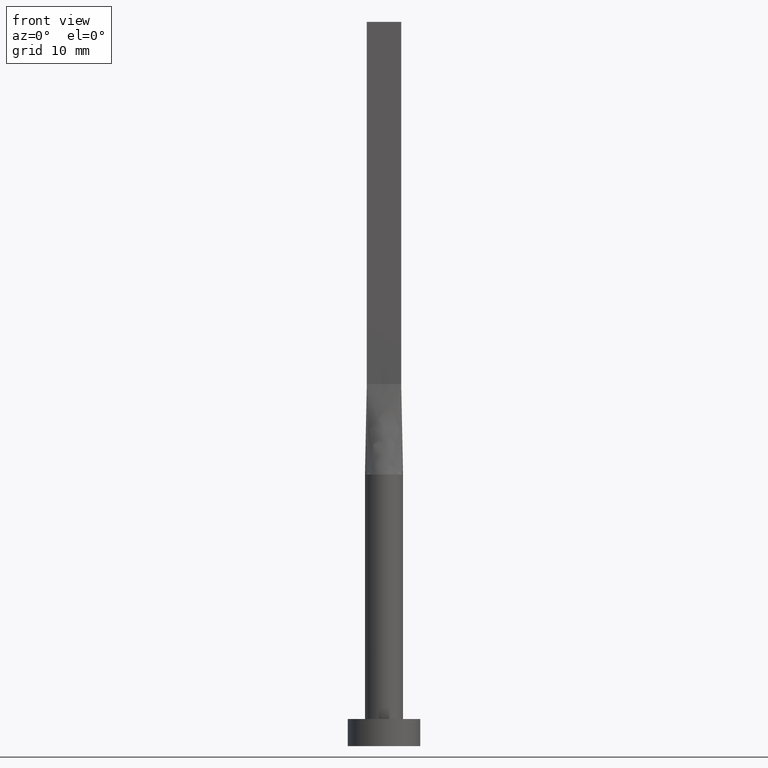
[diagram: clean part render]
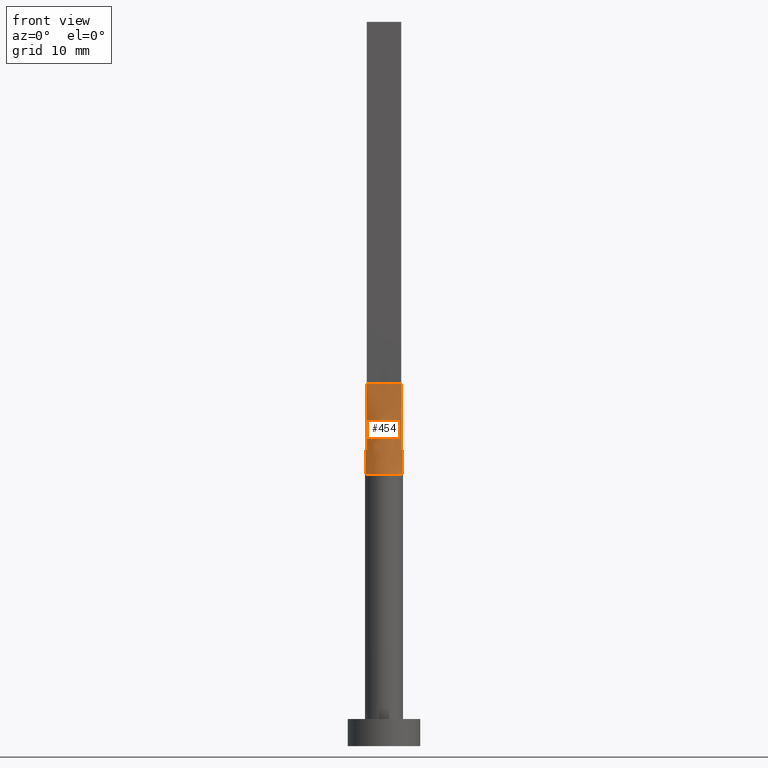
[diagram: same view with one face highlighted and labeled with its STEP entity id]
A machine part, front view. The second image highlights one B-rep face of the part: STEP entity #454.
In plain terms, the highlighted face is a freeform B-spline surface patch.
Its self-contained STEP definition (entity closure, byte-faithful):
#3 = CARTESIAN_POINT ( 'NONE',  ( 0.000000000000000000, 0.000000000000000000, 30.00000000000000000 ) ) ;
#7 = CARTESIAN_POINT ( 'NONE',  ( -0.1583333333333370174, -0.5999999999999995337, 39.99999999999999289 ) ) ;
#15 = VECTOR ( 'NONE', #430, 1000.000000000000000 ) ;
#26 = CARTESIAN_POINT ( 'NONE',  ( 1.899999999999999023, -0.5999999999999997558, 40.00000000000000000 ) ) ;
#28 = EDGE_CURVE ( 'NONE', #198, #228, #481, .T. ) ;
#34 = VERTEX_POINT ( 'NONE', #210 ) ;
#42 = DIRECTION ( 'NONE',  ( 1.000000000000000000, 0.000000000000000000, 0.000000000000000000 ) ) ;
#46 = CARTESIAN_POINT ( 'NONE',  ( 1.878511276496548366, -0.9591670956957810690, 30.00000000000001066 ) ) ;
#48 = CARTESIAN_POINT ( 'NONE',  ( 2.002626276893244128, -0.6324088233005202841, 30.00000000000000000 ) ) ;
#60 = ORIENTED_EDGE ( 'NONE', *, *, #267, .T. ) ;
#64 = VERTEX_POINT ( 'NONE', #48 ) ;
#80 = CARTESIAN_POINT ( 'NONE',  ( -1.899999999999999911, -0.5999999999999995337, 40.00000000000000000 ) ) ;
#85 = CARTESIAN_POINT ( 'NONE',  ( -1.952271707612931895, -0.7915068550356626487, 30.00000000000000000 ) ) ;
#110 = EDGE_LOOP ( 'NONE', ( #273, #60, #263, #449 ) ) ;
#125 = CARTESIAN_POINT ( 'NONE',  ( -0.6333333333333361903, -0.5999999999999994227, 39.99999999999999289 ) ) ;
#127 = CARTESIAN_POINT ( 'NONE',  ( 0.7916666666666634100, -0.5999999999999996447, 39.99999999999999289 ) ) ;
#133 = CARTESIAN_POINT ( 'NONE',  ( -1.108333333333335169, -0.5999999999999994227, 39.99999999999999289 ) ) ;
#172 = CARTESIAN_POINT ( 'NONE',  ( 0.6333333333333299731, -0.5999999999999996447, 39.99999999999999289 ) ) ;
#176 = CARTESIAN_POINT ( 'NONE',  ( 1.266666666666664165, -0.5999999999999996447, 39.99999999999999289 ) ) ;
#180 = CARTESIAN_POINT ( 'NONE',  ( -1.266666666666668162, -0.5999999999999994227, 39.99999999999999289 ) ) ;
#184 = EDGE_CURVE ( 'NONE', #198, #34, #203, .T. ) ;
#195 = CARTESIAN_POINT ( 'NONE',  ( 1.952271707612932339, -0.7915068550356634258, 30.00000000000000000 ) ) ;
#198 = VERTEX_POINT ( 'NONE', #372 ) ;
#202 = B_SPLINE_SURFACE_WITH_KNOTS ( 'NONE', 3, 1, ( 
 ( #312, #265 ),
 ( #85, #323 ),
 ( #389, #431 ),
 ( #358, #180 ),
 ( #220, #133 ),
 ( #534, #399 ),
 ( #492, #125 ),
 ( #223, #433 ),
 ( #486, #7 ),
 ( #275, #314 ),
 ( #391, #578 ),
 ( #392, #172 ),
 ( #355, #127 ),
 ( #443, #581 ),
 ( #440, #176 ),
 ( #46, #226 ),
 ( #195, #459 ),
 ( #406, #510 ) ),
 .UNSPECIFIED., .F., .F., .F.,
 ( 4, 2, 2, 2, 2, 2, 2, 2, 4 ),
 ( 2, 2 ),
 ( 0.000000000000000000, 0.1250000000000000833, 0.2500000000000001110, 0.3750000000000001110, 0.5000000000000001110, 0.6250000000000001110, 0.7500000000000000000, 0.8750000000000000000, 1.000000000000000000 ),
 ( 0.000000000000000000, 1.000000000000000000 ),
 .UNSPECIFIED. ) ;
#203 = LINE ( 'NONE', #457, #499 ) ;
#210 = CARTESIAN_POINT ( 'NONE',  ( -2.002601997802567535, -0.6324010168594718095, 30.00000000000000000 ) ) ;
#220 = CARTESIAN_POINT ( 'NONE',  ( -1.529462611013499229, -1.456669187245239749, 29.99999999999999289 ) ) ;
#223 = CARTESIAN_POINT ( 'NONE',  ( -0.5124799074986365888, -2.051574327850738566, 30.00000000000001066 ) ) ;
#226 = CARTESIAN_POINT ( 'NONE',  ( 1.583333333333331483, -0.5999999999999996447, 39.99999999999999289 ) ) ;
#228 = VERTEX_POINT ( 'NONE', #26 ) ;
#263 = ORIENTED_EDGE ( 'NONE', *, *, #28, .F. ) ;
#265 = CARTESIAN_POINT ( 'NONE',  ( -1.899999999999999911, -0.5999999999999995337, 40.00000000000000000 ) ) ;
#267 = EDGE_CURVE ( 'NONE', #64, #228, #315, .T. ) ;
#273 = ORIENTED_EDGE ( 'NONE', *, *, #330, .T. ) ;
#275 = CARTESIAN_POINT ( 'NONE',  ( 0.2565105576742072735, -2.100000000000000533, 30.00000000000001066 ) ) ;
#281 = DIRECTION ( 'NONE',  ( -0.01025176717979719640, 0.003237400162041168764, 0.9999422085850171449 ) ) ;
#312 = CARTESIAN_POINT ( 'NONE',  ( -2.002523596781697890, -0.6323758726679042930, 30.00000000000000000 ) ) ;
#313 = DIRECTION ( 'NONE',  ( 0.000000000000000000, 0.000000000000000000, 1.000000000000000000 ) ) ;
#314 = CARTESIAN_POINT ( 'NONE',  ( 0.1583333333333295512, -0.5999999999999995337, 39.99999999999999289 ) ) ;
#315 = LINE ( 'NONE', #319, #520 ) ;
#319 = CARTESIAN_POINT ( 'NONE',  ( 1.951261798390848901, -0.6161879363339519688, 35.00000000000000000 ) ) ;
#323 = CARTESIAN_POINT ( 'NONE',  ( -1.741666666666666918, -0.5999999999999994227, 39.99999999999999289 ) ) ;
#330 = EDGE_CURVE ( 'NONE', #34, #64, #362, .T. ) ;
#355 = CARTESIAN_POINT ( 'NONE',  ( 1.184262492297964320, -1.748903470433446961, 30.00000000000000711 ) ) ;
#358 = CARTESIAN_POINT ( 'NONE',  ( -1.667357759214464386, -1.291791096182926424, 30.00000000000001066 ) ) ;
#362 = CIRCLE ( 'NONE', #508, 2.100000000000000089 ) ;
#372 = CARTESIAN_POINT ( 'NONE',  ( -1.899999999999999911, -0.5999999999999995337, 40.00000000000000000 ) ) ;
#379 = DIRECTION ( 'NONE',  ( -0.01025176717979706630, -0.003237400162041201290, -0.9999422085850171449 ) ) ;
#389 = CARTESIAN_POINT ( 'NONE',  ( -1.878511276496548144, -0.9591670956957798477, 30.00000000000001066 ) ) ;
#391 = CARTESIAN_POINT ( 'NONE',  ( 0.5124799074986360337, -2.051574327850739454, 30.00000000000000711 ) ) ;
#392 = CARTESIAN_POINT ( 'NONE',  ( 0.9765948449220478444, -1.875594675604967954, 30.00000000000000711 ) ) ;
#399 = CARTESIAN_POINT ( 'NONE',  ( -0.7916666666666692942, -0.5999999999999994227, 39.99999999999999289 ) ) ;
#406 = CARTESIAN_POINT ( 'NONE',  ( 2.002523596781698334, -0.6323758726679041819, 30.00000000000000000 ) ) ;
#430 = DIRECTION ( 'NONE',  ( 1.000000000000000000, -5.706327223607918787E-17, 0.000000000000000000 ) ) ;
#431 = CARTESIAN_POINT ( 'NONE',  ( -1.583333333333333925, -0.5999999999999994227, 39.99999999999999289 ) ) ;
#433 = CARTESIAN_POINT ( 'NONE',  ( -0.3166666666666700380, -0.5999999999999994227, 39.99999999999999289 ) ) ;
#440 = CARTESIAN_POINT ( 'NONE',  ( 1.667357759214464830, -1.291791096182927534, 30.00000000000001066 ) ) ;
#443 = CARTESIAN_POINT ( 'NONE',  ( 1.529462611013499229, -1.456669187245239971, 30.00000000000000000 ) ) ;
#449 = ORIENTED_EDGE ( 'NONE', *, *, #184, .T. ) ;
#454 = ADVANCED_FACE ( 'NONE', ( #574 ), #202, .T. ) ;
#457 = CARTESIAN_POINT ( 'NONE',  ( -1.951261798390848901, -0.6161879363339519688, 35.00000000000000000 ) ) ;
#459 = CARTESIAN_POINT ( 'NONE',  ( 1.741666666666665142, -0.5999999999999996447, 39.99999999999999289 ) ) ;
#481 = LINE ( 'NONE', #80, #15 ) ;
#486 = CARTESIAN_POINT ( 'NONE',  ( -0.2565105576742081062, -2.100000000000000089, 30.00000000000000711 ) ) ;
#492 = CARTESIAN_POINT ( 'NONE',  ( -0.9765948449220485106, -1.875594675604967509, 30.00000000000000355 ) ) ;
#499 = VECTOR ( 'NONE', #379, 1000.000000000000114 ) ;
#508 = AXIS2_PLACEMENT_3D ( 'NONE', #3, #313, #42 ) ;
#510 = CARTESIAN_POINT ( 'NONE',  ( 1.899999999999999023, -0.5999999999999997558, 40.00000000000000000 ) ) ;
#520 = VECTOR ( 'NONE', #281, 1000.000000000000114 ) ;
#534 = CARTESIAN_POINT ( 'NONE',  ( -1.184262492297964098, -1.748903470433446294, 30.00000000000000000 ) ) ;
#574 = FACE_OUTER_BOUND ( 'NONE', #110, .T. ) ;
#578 = CARTESIAN_POINT ( 'NONE',  ( 0.3166666666666629881, -0.5999999999999995337, 39.99999999999999289 ) ) ;
#581 = CARTESIAN_POINT ( 'NONE',  ( 1.108333333333330506, -0.5999999999999996447, 39.99999999999999289 ) ) ;